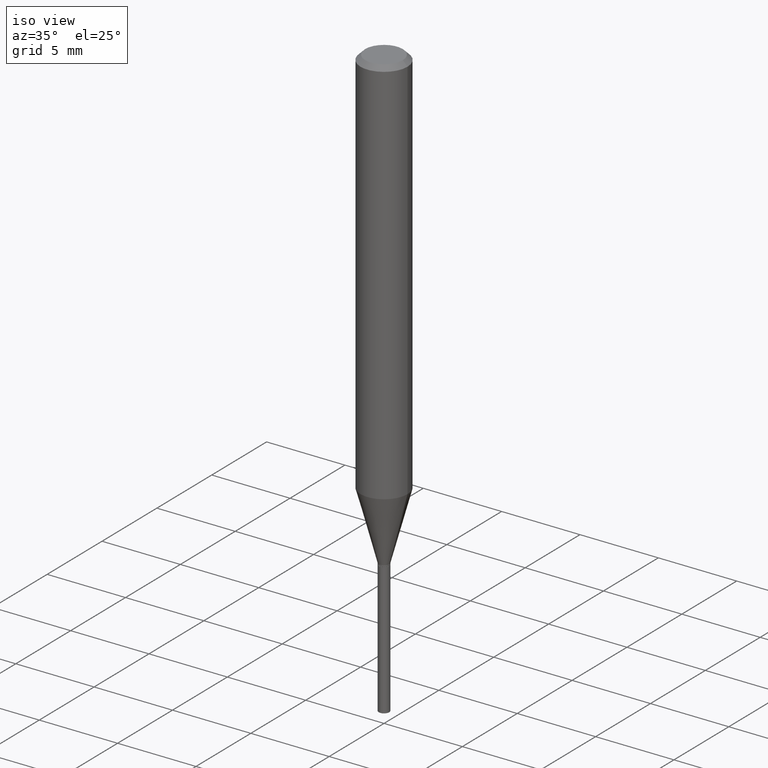
[diagram: clean part render]
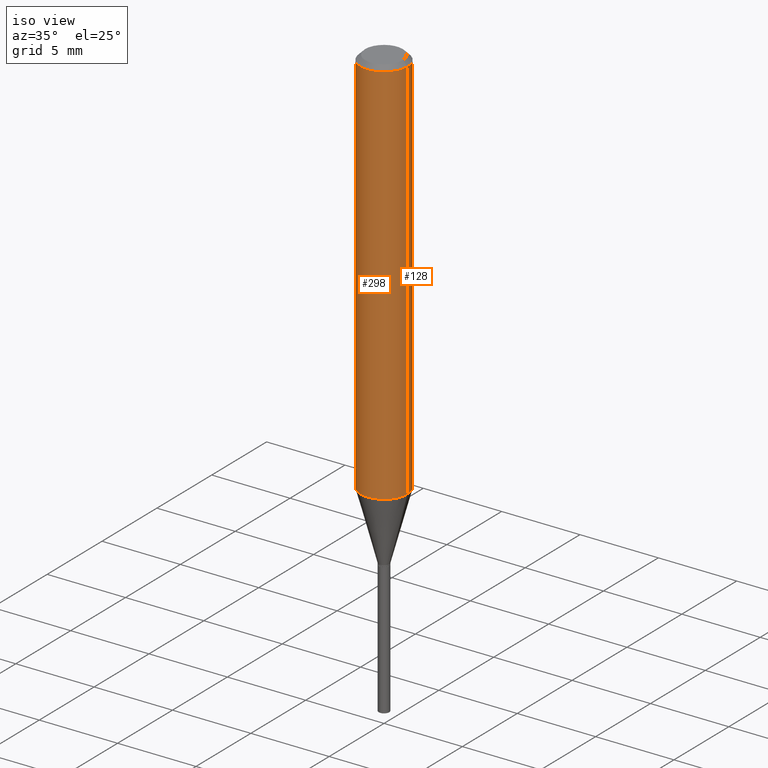
[diagram: same view with one multi-face feature highlighted, each face labeled with its STEP entity id]
A machine part, iso view. The highlighted faces form ONE feature: a constant-radius fillet chain: 2 tangent blend faces with common blend radius 1.4999 mm. The faces share edges in the B-rep.
Their STEP definitions:
[1] entity #298 (Cylinder):
#24 = DIRECTION ( 'NONE',  ( -2.445468806185136597E-29, 3.491481338843145583E-15, 1.000000000000000000 ) ) ;
#31 = EDGE_CURVE ( 'NONE', #371, #271, #225, .T. ) ;
#43 = ORIENTED_EDGE ( 'NONE', *, *, #31, .T. ) ;
#76 = DIRECTION ( 'NONE',  ( 1.000000000000000000, -6.982962677686266711E-15, 4.876176775795935793E-29 ) ) ;
#93 = DIRECTION ( 'NONE',  ( -2.445468806185136877E-29, 3.491481338843145188E-15, 1.000000000000000000 ) ) ;
#94 = VERTEX_POINT ( 'NONE', #366 ) ;
#104 = AXIS2_PLACEMENT_3D ( 'NONE', #250, #24, #241 ) ;
#112 = CARTESIAN_POINT ( 'NONE',  ( 0.000000000000000000, 0.000000000000000000, 0.000000000000000000 ) ) ;
#113 = DIRECTION ( 'NONE',  ( 1.000000000000000000, -6.982962677686266711E-15, 0.000000000000000000 ) ) ;
#114 = CARTESIAN_POINT ( 'NONE',  ( 0.05905000000000011628, -3.842324483824382352E-15, -0.9823854704729667597 ) ) ;
#118 = ORIENTED_EDGE ( 'NONE', *, *, #411, .T. ) ;
#127 = ORIENTED_EDGE ( 'NONE', *, *, #378, .F. ) ;
#130 = AXIS2_PLACEMENT_3D ( 'NONE', #299, #178, #113 ) ;
#147 = FACE_OUTER_BOUND ( 'NONE', #339, .T. ) ;
#153 = EDGE_CURVE ( 'NONE', #94, #318, #414, .T. ) ;
#161 = CARTESIAN_POINT ( 'NONE',  ( -0.05905000000000011628, -3.010405052240667150E-15, -0.9823854704729667597 ) ) ;
#178 = DIRECTION ( 'NONE',  ( -2.445468806185136597E-29, 3.491481338843145583E-15, 1.000000000000000000 ) ) ;
#191 = DIRECTION ( 'NONE',  ( -2.445468806185136877E-29, 3.491481338843145188E-15, 1.000000000000000000 ) ) ;
#224 = VECTOR ( 'NONE', #191, 39.37007874015748143 ) ;
#225 = CIRCLE ( 'NONE', #104, 0.05905000000000011628 ) ;
#229 = LINE ( 'NONE', #347, #421 ) ;
#241 = DIRECTION ( 'NONE',  ( 1.000000000000000000, -6.982962677686266711E-15, 0.000000000000000000 ) ) ;
#250 = CARTESIAN_POINT ( 'NONE',  ( 2.402393023691149824E-29, -3.429980537707007431E-15, -0.9823854704729667597 ) ) ;
#271 = VERTEX_POINT ( 'NONE', #114 ) ;
#273 = CARTESIAN_POINT ( 'NONE',  ( 0.05905000000000006077, -4.123439461173744764E-16, 2.879382386107503023E-30 ) ) ;
#298 = ADVANCED_FACE ( 'NONE', ( #147 ), #441, .T. ) ;
#299 = CARTESIAN_POINT ( 'NONE',  ( 2.888098660104664204E-31, -4.123439461173780263E-17, -0.01181000000000007218 ) ) ;
#304 = CARTESIAN_POINT ( 'NONE',  ( 0.05904999999999999832, -4.535783407291118600E-16, -0.01181000000000007218 ) ) ;
#318 = VERTEX_POINT ( 'NONE', #304 ) ;
#339 = EDGE_LOOP ( 'NONE', ( #127, #43, #118, #454 ) ) ;
#347 = CARTESIAN_POINT ( 'NONE',  ( -0.05905000000000006077, 4.195754854663395916E-16, -2.904631170795524694E-30 ) ) ;
#366 = CARTESIAN_POINT ( 'NONE',  ( -0.05904999999999999832, -1.316031980693032298E-15, -0.01181000000000007218 ) ) ;
#371 = VERTEX_POINT ( 'NONE', #161 ) ;
#378 = EDGE_CURVE ( 'NONE', #371, #94, #229, .T. ) ;
#409 = DIRECTION ( 'NONE',  ( -2.445468806185136597E-29, 3.491481338843145583E-15, 1.000000000000000000 ) ) ;
#411 = EDGE_CURVE ( 'NONE', #271, #318, #456, .T. ) ;
#414 = CIRCLE ( 'NONE', #130, 0.05904999999999999832 ) ;
#421 = VECTOR ( 'NONE', #93, 39.37007874015748143 ) ;
#441 = CYLINDRICAL_SURFACE ( 'NONE', #459, 0.05905000000000006077 ) ;
#454 = ORIENTED_EDGE ( 'NONE', *, *, #153, .F. ) ;
#456 = LINE ( 'NONE', #273, #224 ) ;
#459 = AXIS2_PLACEMENT_3D ( 'NONE', #112, #409, #76 ) ;
[2] entity #128 (Cylinder):
#33 = CYLINDRICAL_SURFACE ( 'NONE', #65, 0.05905000000000006077 ) ;
#37 = CIRCLE ( 'NONE', #79, 0.05905000000000011628 ) ;
#59 = ORIENTED_EDGE ( 'NONE', *, *, #465, .T. ) ;
#65 = AXIS2_PLACEMENT_3D ( 'NONE', #405, #483, #341 ) ;
#69 = DIRECTION ( 'NONE',  ( 1.000000000000000000, -6.982962677686266711E-15, 0.000000000000000000 ) ) ;
#79 = AXIS2_PLACEMENT_3D ( 'NONE', #211, #170, #69 ) ;
#83 = EDGE_LOOP ( 'NONE', ( #59, #210, #348, #426 ) ) ;
#84 = EDGE_CURVE ( 'NONE', #318, #94, #322, .T. ) ;
#93 = DIRECTION ( 'NONE',  ( -2.445468806185136877E-29, 3.491481338843145188E-15, 1.000000000000000000 ) ) ;
#94 = VERTEX_POINT ( 'NONE', #366 ) ;
#114 = CARTESIAN_POINT ( 'NONE',  ( 0.05905000000000011628, -3.842324483824382352E-15, -0.9823854704729667597 ) ) ;
#128 = ADVANCED_FACE ( 'NONE', ( #227 ), #33, .T. ) ;
#161 = CARTESIAN_POINT ( 'NONE',  ( -0.05905000000000011628, -3.010405052240667150E-15, -0.9823854704729667597 ) ) ;
#170 = DIRECTION ( 'NONE',  ( -2.445468806185136597E-29, 3.491481338843145583E-15, 1.000000000000000000 ) ) ;
#191 = DIRECTION ( 'NONE',  ( -2.445468806185136877E-29, 3.491481338843145188E-15, 1.000000000000000000 ) ) ;
#210 = ORIENTED_EDGE ( 'NONE', *, *, #378, .T. ) ;
#211 = CARTESIAN_POINT ( 'NONE',  ( 2.402393023691149824E-29, -3.429980537707007431E-15, -0.9823854704729667597 ) ) ;
#224 = VECTOR ( 'NONE', #191, 39.37007874015748143 ) ;
#227 = FACE_OUTER_BOUND ( 'NONE', #83, .T. ) ;
#229 = LINE ( 'NONE', #347, #421 ) ;
#245 = CARTESIAN_POINT ( 'NONE',  ( 2.888098660104664204E-31, -4.123439461173780263E-17, -0.01181000000000007218 ) ) ;
#271 = VERTEX_POINT ( 'NONE', #114 ) ;
#273 = CARTESIAN_POINT ( 'NONE',  ( 0.05905000000000006077, -4.123439461173744764E-16, 2.879382386107503023E-30 ) ) ;
#304 = CARTESIAN_POINT ( 'NONE',  ( 0.05904999999999999832, -4.535783407291118600E-16, -0.01181000000000007218 ) ) ;
#318 = VERTEX_POINT ( 'NONE', #304 ) ;
#322 = CIRCLE ( 'NONE', #331, 0.05904999999999999832 ) ;
#331 = AXIS2_PLACEMENT_3D ( 'NONE', #245, #431, #398 ) ;
#341 = DIRECTION ( 'NONE',  ( 1.000000000000000000, -6.982962677686266711E-15, 4.876176775795935793E-29 ) ) ;
#347 = CARTESIAN_POINT ( 'NONE',  ( -0.05905000000000006077, 4.195754854663395916E-16, -2.904631170795524694E-30 ) ) ;
#348 = ORIENTED_EDGE ( 'NONE', *, *, #84, .F. ) ;
#366 = CARTESIAN_POINT ( 'NONE',  ( -0.05904999999999999832, -1.316031980693032298E-15, -0.01181000000000007218 ) ) ;
#371 = VERTEX_POINT ( 'NONE', #161 ) ;
#378 = EDGE_CURVE ( 'NONE', #371, #94, #229, .T. ) ;
#398 = DIRECTION ( 'NONE',  ( 1.000000000000000000, -6.982962677686266711E-15, 0.000000000000000000 ) ) ;
#405 = CARTESIAN_POINT ( 'NONE',  ( 0.000000000000000000, 0.000000000000000000, 0.000000000000000000 ) ) ;
#411 = EDGE_CURVE ( 'NONE', #271, #318, #456, .T. ) ;
#421 = VECTOR ( 'NONE', #93, 39.37007874015748143 ) ;
#426 = ORIENTED_EDGE ( 'NONE', *, *, #411, .F. ) ;
#431 = DIRECTION ( 'NONE',  ( -2.445468806185136597E-29, 3.491481338843145583E-15, 1.000000000000000000 ) ) ;
#456 = LINE ( 'NONE', #273, #224 ) ;
#465 = EDGE_CURVE ( 'NONE', #271, #371, #37, .T. ) ;
#483 = DIRECTION ( 'NONE',  ( -2.445468806185136597E-29, 3.491481338843145583E-15, 1.000000000000000000 ) ) ;